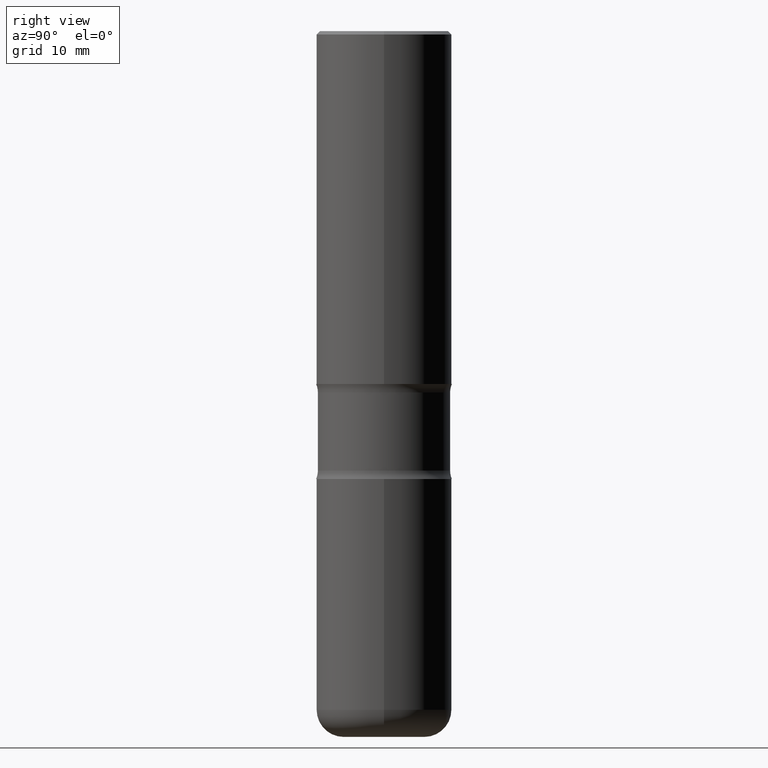
[diagram: clean part render]
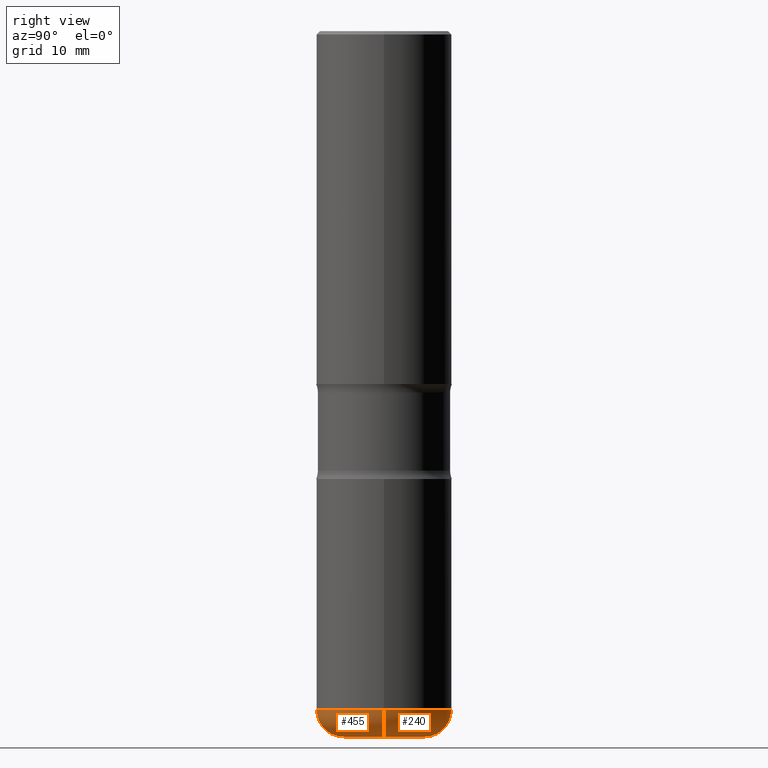
[diagram: same view with one multi-face feature highlighted, each face labeled with its STEP entity id]
A machine part, right view. The highlighted faces form ONE feature: a constant-radius fillet chain: 2 tangent blend faces with common blend radius 4.0005 mm. The faces share edges in the B-rep.
Their STEP definitions:
[1] entity #240 (Torus):
#30 = AXIS2_PLACEMENT_3D ( 'NONE', #106, #228, #396 ) ;
#40 = VERTEX_POINT ( 'NONE', #235 ) ;
#46 = CIRCLE ( 'NONE', #30, 0.3937000000000003830 ) ;
#49 = FACE_OUTER_BOUND ( 'NONE', #334, .T. ) ;
#98 = ORIENTED_EDGE ( 'NONE', *, *, #502, .F. ) ;
#106 = CARTESIAN_POINT ( 'NONE',  ( 9.627810689950881427E-29, -1.374596203102546184E-14, -3.936999999999999389 ) ) ;
#118 = DIRECTION ( 'NONE',  ( -6.982962677686266711E-15, -1.000000000000000000, 3.491481338843145583E-15 ) ) ;
#120 = ORIENTED_EDGE ( 'NONE', *, *, #226, .F. ) ;
#130 = TOROIDAL_SURFACE ( 'NONE', #254, 0.2362000000000003264, 0.1574999999999998346 ) ;
#151 = DIRECTION ( 'NONE',  ( -1.000000000000000000, 7.105427357601005014E-15, 0.000000000000000000 ) ) ;
#152 = DIRECTION ( 'NONE',  ( -2.445468806185136597E-29, 3.491481338843145583E-15, 1.000000000000000000 ) ) ;
#153 = EDGE_CURVE ( 'NONE', #40, #257, #189, .T. ) ;
#161 = CARTESIAN_POINT ( 'NONE',  ( 9.627810689950881427E-29, -1.374596203102546184E-14, -3.936999999999999389 ) ) ;
#189 = CIRCLE ( 'NONE', #453, 0.1574999999999998346 ) ;
#219 = CARTESIAN_POINT ( 'NONE',  ( 0.3937000000000002164, -1.649515443723054663E-14, -3.936999999999999389 ) ) ;
#226 = EDGE_CURVE ( 'NONE', #431, #257, #46, .T. ) ;
#228 = DIRECTION ( 'NONE',  ( -2.445468806185136597E-29, 3.491481338843145583E-15, 1.000000000000000000 ) ) ;
#235 = CARTESIAN_POINT ( 'NONE',  ( -0.2362000000000003819, -1.178306184018292331E-14, -4.094499999999999140 ) ) ;
#240 = ADVANCED_FACE ( 'NONE', ( #49 ), #130, .T. ) ;
#254 = AXIS2_PLACEMENT_3D ( 'NONE', #161, #152, #313 ) ;
#257 = VERTEX_POINT ( 'NONE', #497 ) ;
#269 = DIRECTION ( 'NONE',  ( -2.445468806185136597E-29, 3.491481338843145583E-15, 1.000000000000000000 ) ) ;
#273 = CIRCLE ( 'NONE', #544, 0.1574999999999998346 ) ;
#290 = DIRECTION ( 'NONE',  ( 1.000000000000000000, -6.982962677686269866E-15, 0.000000000000000000 ) ) ;
#310 = VERTEX_POINT ( 'NONE', #350 ) ;
#313 = DIRECTION ( 'NONE',  ( 1.000000000000000000, -6.982962677686265922E-15, 4.883557194083112340E-29 ) ) ;
#334 = EDGE_LOOP ( 'NONE', ( #547, #467, #120, #98 ) ) ;
#350 = CARTESIAN_POINT ( 'NONE',  ( 0.2362000000000003819, -1.594524612636275802E-14, -4.094499999999999140 ) ) ;
#396 = DIRECTION ( 'NONE',  ( 1.000000000000000000, -6.982962677686266711E-15, 0.000000000000000000 ) ) ;
#399 = EDGE_CURVE ( 'NONE', #310, #40, #494, .T. ) ;
#419 = DIRECTION ( 'NONE',  ( 1.000000000000000000, -6.982962677686269077E-15, 0.000000000000000000 ) ) ;
#422 = AXIS2_PLACEMENT_3D ( 'NONE', #437, #269, #419 ) ;
#431 = VERTEX_POINT ( 'NONE', #219 ) ;
#437 = CARTESIAN_POINT ( 'NONE',  ( 1.001297202692503990E-28, -1.429587034189325834E-14, -4.094499999999999140 ) ) ;
#453 = AXIS2_PLACEMENT_3D ( 'NONE', #560, #519, #151 ) ;
#467 = ORIENTED_EDGE ( 'NONE', *, *, #153, .T. ) ;
#494 = CIRCLE ( 'NONE', #422, 0.2362000000000003819 ) ;
#497 = CARTESIAN_POINT ( 'NONE',  ( -0.3937000000000002164, -1.094855528033794626E-14, -3.936999999999999389 ) ) ;
#502 = EDGE_CURVE ( 'NONE', #310, #431, #273, .T. ) ;
#508 = CARTESIAN_POINT ( 'NONE',  ( 0.2362000000000003264, -1.539533781549495994E-14, -3.936999999999999389 ) ) ;
#519 = DIRECTION ( 'NONE',  ( 7.105427357601001859E-15, 1.000000000000000000, -3.491481338843145583E-15 ) ) ;
#544 = AXIS2_PLACEMENT_3D ( 'NONE', #508, #118, #290 ) ;
#547 = ORIENTED_EDGE ( 'NONE', *, *, #399, .T. ) ;
#560 = CARTESIAN_POINT ( 'NONE',  ( -0.2362000000000003264, -1.206766008916010386E-14, -3.936999999999999389 ) ) ;
[2] entity #455 (Torus):
#7 = DIRECTION ( 'NONE',  ( -2.445468806185136597E-29, 3.491481338843145583E-15, 1.000000000000000000 ) ) ;
#27 = EDGE_CURVE ( 'NONE', #257, #431, #232, .T. ) ;
#40 = VERTEX_POINT ( 'NONE', #235 ) ;
#45 = AXIS2_PLACEMENT_3D ( 'NONE', #274, #225, #397 ) ;
#51 = EDGE_LOOP ( 'NONE', ( #413, #473, #159, #424 ) ) ;
#112 = CIRCLE ( 'NONE', #439, 0.2362000000000003819 ) ;
#118 = DIRECTION ( 'NONE',  ( -6.982962677686266711E-15, -1.000000000000000000, 3.491481338843145583E-15 ) ) ;
#119 = EDGE_CURVE ( 'NONE', #40, #310, #112, .T. ) ;
#151 = DIRECTION ( 'NONE',  ( -1.000000000000000000, 7.105427357601005014E-15, 0.000000000000000000 ) ) ;
#153 = EDGE_CURVE ( 'NONE', #40, #257, #189, .T. ) ;
#159 = ORIENTED_EDGE ( 'NONE', *, *, #502, .T. ) ;
#189 = CIRCLE ( 'NONE', #453, 0.1574999999999998346 ) ;
#192 = TOROIDAL_SURFACE ( 'NONE', #393, 0.2362000000000003264, 0.1574999999999998346 ) ;
#219 = CARTESIAN_POINT ( 'NONE',  ( 0.3937000000000002164, -1.649515443723054663E-14, -3.936999999999999389 ) ) ;
#225 = DIRECTION ( 'NONE',  ( -2.445468806185136597E-29, 3.491481338843145583E-15, 1.000000000000000000 ) ) ;
#232 = CIRCLE ( 'NONE', #45, 0.3937000000000003830 ) ;
#235 = CARTESIAN_POINT ( 'NONE',  ( -0.2362000000000003819, -1.178306184018292331E-14, -4.094499999999999140 ) ) ;
#257 = VERTEX_POINT ( 'NONE', #497 ) ;
#273 = CIRCLE ( 'NONE', #544, 0.1574999999999998346 ) ;
#274 = CARTESIAN_POINT ( 'NONE',  ( 9.627810689950881427E-29, -1.374596203102546184E-14, -3.936999999999999389 ) ) ;
#289 = CARTESIAN_POINT ( 'NONE',  ( 1.001297202692503990E-28, -1.429587034189325834E-14, -4.094499999999999140 ) ) ;
#290 = DIRECTION ( 'NONE',  ( 1.000000000000000000, -6.982962677686269866E-15, 0.000000000000000000 ) ) ;
#303 = DIRECTION ( 'NONE',  ( -2.445468806185136597E-29, 3.491481338843145583E-15, 1.000000000000000000 ) ) ;
#309 = FACE_OUTER_BOUND ( 'NONE', #51, .T. ) ;
#310 = VERTEX_POINT ( 'NONE', #350 ) ;
#350 = CARTESIAN_POINT ( 'NONE',  ( 0.2362000000000003819, -1.594524612636275802E-14, -4.094499999999999140 ) ) ;
#388 = DIRECTION ( 'NONE',  ( 1.000000000000000000, -6.982962677686265922E-15, 4.883557194083112340E-29 ) ) ;
#393 = AXIS2_PLACEMENT_3D ( 'NONE', #435, #7, #388 ) ;
#397 = DIRECTION ( 'NONE',  ( 1.000000000000000000, -6.982962677686266711E-15, 0.000000000000000000 ) ) ;
#413 = ORIENTED_EDGE ( 'NONE', *, *, #153, .F. ) ;
#424 = ORIENTED_EDGE ( 'NONE', *, *, #27, .F. ) ;
#431 = VERTEX_POINT ( 'NONE', #219 ) ;
#435 = CARTESIAN_POINT ( 'NONE',  ( 9.627810689950881427E-29, -1.374596203102546184E-14, -3.936999999999999389 ) ) ;
#439 = AXIS2_PLACEMENT_3D ( 'NONE', #289, #303, #542 ) ;
#453 = AXIS2_PLACEMENT_3D ( 'NONE', #560, #519, #151 ) ;
#455 = ADVANCED_FACE ( 'NONE', ( #309 ), #192, .T. ) ;
#473 = ORIENTED_EDGE ( 'NONE', *, *, #119, .T. ) ;
#497 = CARTESIAN_POINT ( 'NONE',  ( -0.3937000000000002164, -1.094855528033794626E-14, -3.936999999999999389 ) ) ;
#502 = EDGE_CURVE ( 'NONE', #310, #431, #273, .T. ) ;
#508 = CARTESIAN_POINT ( 'NONE',  ( 0.2362000000000003264, -1.539533781549495994E-14, -3.936999999999999389 ) ) ;
#519 = DIRECTION ( 'NONE',  ( 7.105427357601001859E-15, 1.000000000000000000, -3.491481338843145583E-15 ) ) ;
#542 = DIRECTION ( 'NONE',  ( 1.000000000000000000, -6.982962677686269077E-15, 0.000000000000000000 ) ) ;
#544 = AXIS2_PLACEMENT_3D ( 'NONE', #508, #118, #290 ) ;
#560 = CARTESIAN_POINT ( 'NONE',  ( -0.2362000000000003264, -1.206766008916010386E-14, -3.936999999999999389 ) ) ;